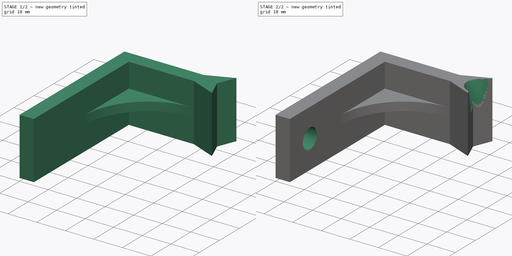
[diagram: build sequence overview — one tinted view per stage of 2, left to right]
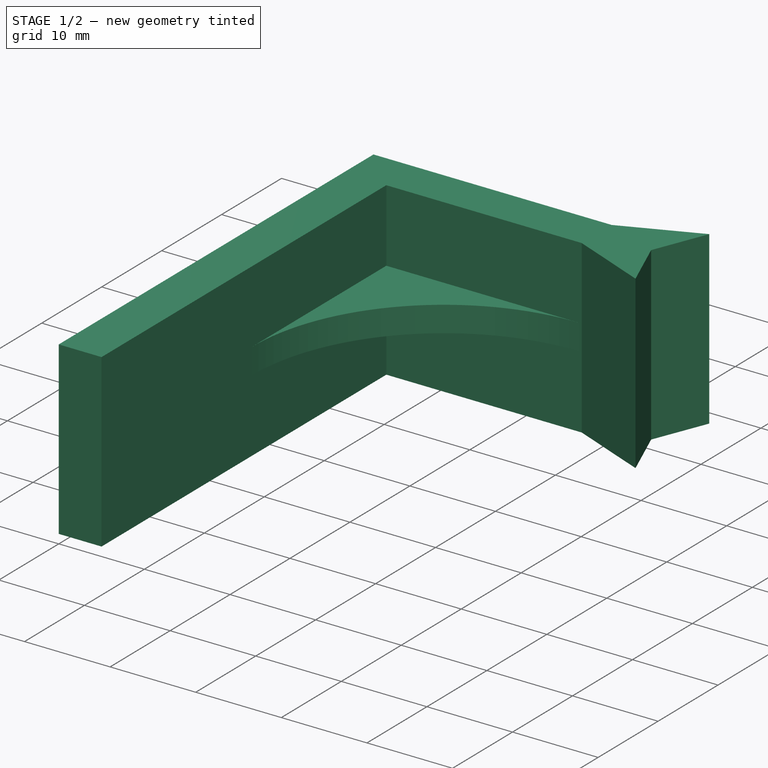
[diagram: stage 1 of 2 — iso view after this stage's code; geometry added in this stage tinted green]
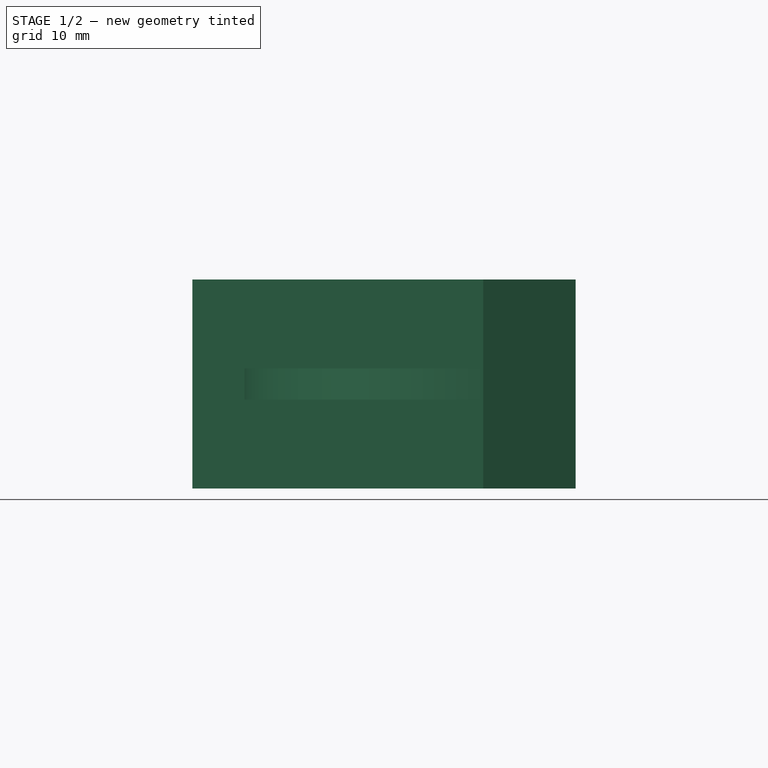
[diagram: stage 1 of 2 — front view after this stage's code; geometry added in this stage tinted green]
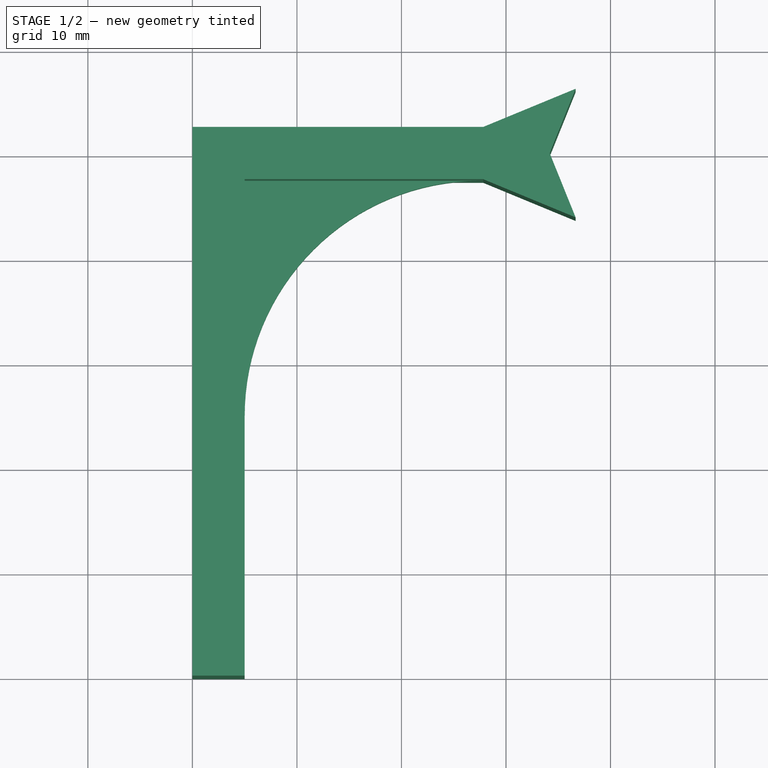
[diagram: stage 1 of 2 — top view after this stage's code; geometry added in this stage tinted green]
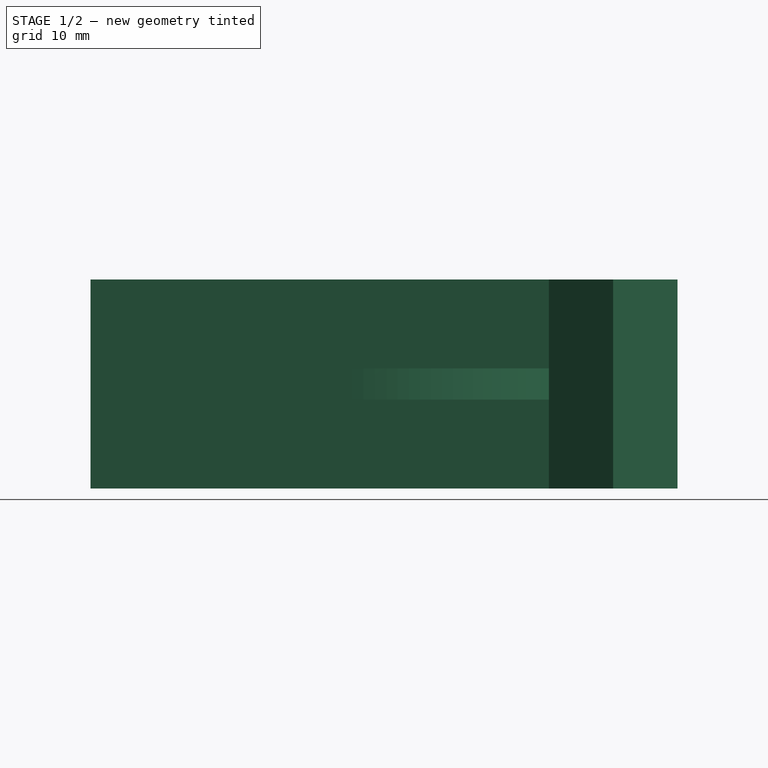
[diagram: stage 1 of 2 — right view after this stage's code; geometry added in this stage tinted green]
FCSTD DOCUMENT  (FreeCAD 0.18R16131 (Git))
Label: support filament
License: All rights reserved
LicenseURL: http://en.wikipedia.org/wiki/All_rights_reserved
objects: Sketcher::SketchObject×7, PartDesign::Pad×2, PartDesign::FeatureBase×1, PartDesign::Pocket×1, Part::Sweep×1, Part::Loft×1, PartDesign::SubtractivePipe×1, PartDesign::Body×1
note: 19 computed .brp shape members not serialized (recipe doc carries the construction recipe); baked Part::Feature solids carry a one-line shape summary decoded from their .brp

FEATURE [Sketcher::SketchObject] Sketch  label="goutiere base"
  MapMode = 5
  Support = -> [XY_Plane]
  sketch-geometry (4):
    g0: ArcOfCircle CenterX=0 CenterY=0 CenterZ=0 NormalX=0 NormalY=0 NormalZ=1 AngleXU=0 Radius=5 StartAngle=1.5708 EndAngle=4.71239
    g1: ArcOfCircle CenterX=0 CenterY=0 CenterZ=0 NormalX=0 NormalY=0 NormalZ=1 AngleXU=0 Radius=7 StartAngle=1.5708 EndAngle=4.71239
    g2: LineSegment StartX=4e-16 StartY=7 StartZ=0 EndX=3e-16 EndY=5 EndZ=0
    g3: LineSegment StartX=-9e-16 StartY=-5 StartZ=0 EndX=-1.3e-15 EndY=-7 EndZ=0
  constraints (12):
    c: Coincident(g0,g-1)
    c: Diameter(g0) = 10
    c: Diameter(g1) = 14
    c: Coincident(g1,g0)
    c: Coincident(g2,g1)
    c: Coincident(g2,g0)
    c: Coincident(g3,g0)
    c: PointOnObject(g3,g-2)
    c: Coincident(g1,g3)
    c: PointOnObject(g0,g-2)
    c: PointOnObject(g1,g-2)
    c: PointOnObject(g0,g-2)
FEATURE [Sketcher::SketchObject] Sketch004  label="bras 90"
  ExternalGeometry = -> [Sketch]
  MapMode = 5
  Support = -> [XY_Plane]
  sketch-geometry (14):
    g0: LineSegment StartX=-40 StartY=-50 StartZ=0 EndX=-35 EndY=-50 EndZ=0
    g1: LineSegment StartX=-35 StartY=-50 StartZ=0 EndX=-35 EndY=-2.5 EndZ=0
    g2: LineSegment StartX=-35 StartY=-2.5 StartZ=0 EndX=-12.1778 EndY=-2.5 EndZ=0
    g3: LineSegment StartX=-3.33923 StartY=-6.1522 StartZ=0 EndX=-5.82012 EndY=0 EndZ=0
    g4: LineSegment StartX=-12.1778 StartY=2.5 StartZ=0 EndX=-40 EndY=2.5 EndZ=0
    g5: LineSegment StartX=-40 StartY=2.5 StartZ=0 EndX=-40 EndY=-50 EndZ=0
    g6: GeomPoint X=-12.1778 Y=-2.5 Z=0
    g7: LineSegment [constr] StartX=-12.1778 StartY=18.2964 StartZ=0 EndX=-12.1778 EndY=-27.7085 EndZ=0
    g8: GeomPoint X=-12.1778 Y=2.5 Z=0
    g9: LineSegment StartX=-3.33923 StartY=-6.1522 StartZ=0 EndX=-12.1778 EndY=-2.5 EndZ=0
    g10: LineSegment StartX=-3.33923 StartY=6.1522 StartZ=0 EndX=-12.1778 EndY=2.5 EndZ=0
    g11: LineSegment [constr] StartX=-3.33923 StartY=16.1376 StartZ=0 EndX=-3.33923 EndY=-21.8091 EndZ=0
    g12: LineSegment StartX=-3.33923 StartY=6.1522 StartZ=0 EndX=-5.82012 EndY=0 EndZ=0
    g13: LineSegment [constr] StartX=-5.82012 StartY=11.5217 StartZ=0 EndX=-5.82012 EndY=-16.3891 EndZ=0
  constraints (34):
    c: Horizontal(g0)
    c: Coincident(g0,g1)
    c: Vertical(g1)
    c: Coincident(g1,g2)
    c: Horizontal(g2)
    c: Horizontal(g4)
    c: Coincident(g4,g5)
    c: Vertical(g5)
    c: Coincident(g5,g0)
    c: DistanceY(g1,g4) = 5
    c: PointOnObject(g6,g2)
    c: Vertical(g7)
    c: PointOnObject(g6,g7)
    c: PointOnObject(g8,g4)
    c: PointOnObject(g8,g7)
    c: DistanceY(g0,g-1) = 50
    c: DistanceX(g4,g-1) = 40
    c: DistanceX(g0,g0) = 5
    c: DistanceY(g1,g-1) = 2.5
    c: PointOnObject(g4,g7)
    c: PointOnObject(g2,g7)
    c: Coincident(g9,g3)
    c: Coincident(g9,g2)
    c: Coincident(g10,g4)
    c: Vertical(g11)
    c: PointOnObject(g3,g11)
    c: PointOnObject(g10,g11)
    c: PointOnObject(g3,g-1)
    c: PointOnObject(g10,g-3)
    c: PointOnObject(g3,g-3)
    c: Coincident(g12,g3)
    c: Vertical(g13)
    c: PointOnObject(g3,g13)
    c: Coincident(g12,g10)
FEATURE [Sketcher::SketchObject] Sketch002  label="bras penche"
  ExternalGeometry = -> [Sketch004]
  MapMode = 5
  Support = -> [XY_Plane]
  sketch-geometry (4):
    g0: LineSegment StartX=-12.1778 StartY=-2.5 StartZ=0 EndX=-18.1419 EndY=-2.5 EndZ=0
    g1: LineSegment StartX=-35 StartY=-30 StartZ=0 EndX=-35 EndY=-18.7334 EndZ=0
    g2: LineSegment StartX=-18.7666 StartY=-2.5 StartZ=0 EndX=-12.1778 EndY=-2.5 EndZ=0
    g3: ArcOfCircle CenterX=-18.7666 CenterY=-18.7334 CenterZ=0 NormalX=0 NormalY=0 NormalZ=1 AngleXU=0 Radius=16.2334 StartAngle=1.5708 EndAngle=3.14159
  constraints (9):
    c: PointOnObject(g0,g-3)
    c: Vertical(g1)
    c: Horizontal(g2)
    c: Coincident(g-3,g2)
    c: Coincident(g0,g2)
    c: DistanceY(g-4,g1) = 20
    c: PointOnObject(g1,g-4)
    c: Tangent(g1,g3) = 1.5708
    c: Tangent(g2,g3) = 1.5708
FEATURE [Sketcher::SketchObject] Sketch006  label="trou"
  AttachmentOffset = pos=(-50,0,0) rot=(0,0,1;0rad)
  ExternalGeometry = -> [Sketch004]
  MapMode = 5
  Placement = pos=(-1.11e-14,-50,1.11e-14) rot=(0.57735,0.57735,0.57735;2.0944rad)
  Support = -> [YZ_Plane]
  sketch-geometry (1):
    g0: Circle CenterX=10 CenterY=-4.7e-15 CenterZ=0 NormalX=0 NormalY=0 NormalZ=1 AngleXU=0 Radius=3.5
  constraints (2):
    c: Diameter(g0) = 7
    c: DistanceX(g-1,g0) = 10
FEATURE [PartDesign::FeatureBase] BaseFeature
FEATURE [PartDesign::Pad] Pad  label="Pad bras penche"
  BaseFeature = -> BaseFeature
  Length = 3
  Length2 = 100
  Midplane = true
  Profile = -> Sketch002
  Type = 0
FEATURE [PartDesign::Pad] Pad002  label="pad bras 90"
  BaseFeature = -> Pad
  Length = 20
  Length2 = 100
  Midplane = true
  Profile = -> Sketch004
  Type = 0
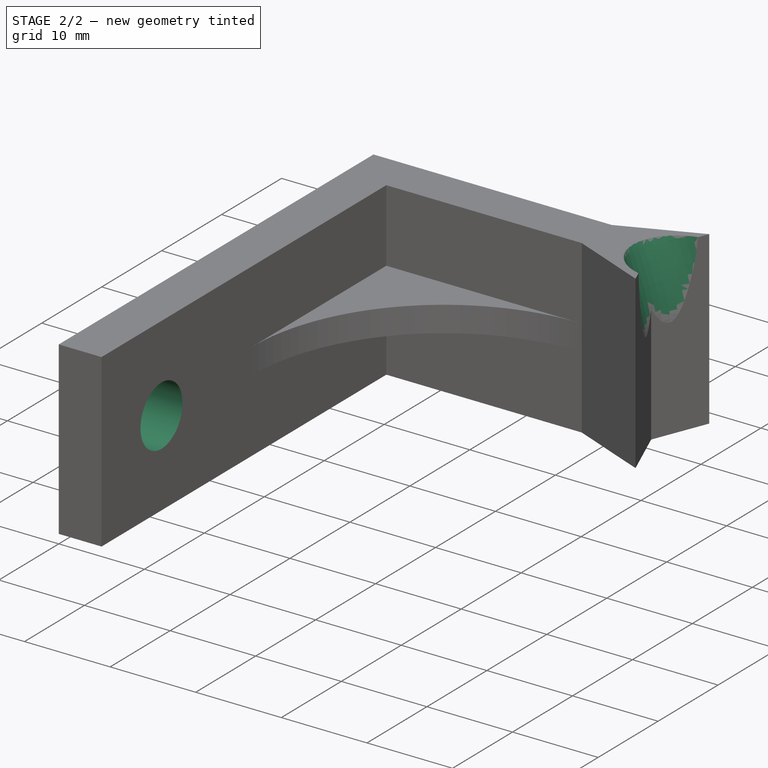
[diagram: stage 2 of 2 — iso view after this stage's code; geometry added in this stage tinted green]
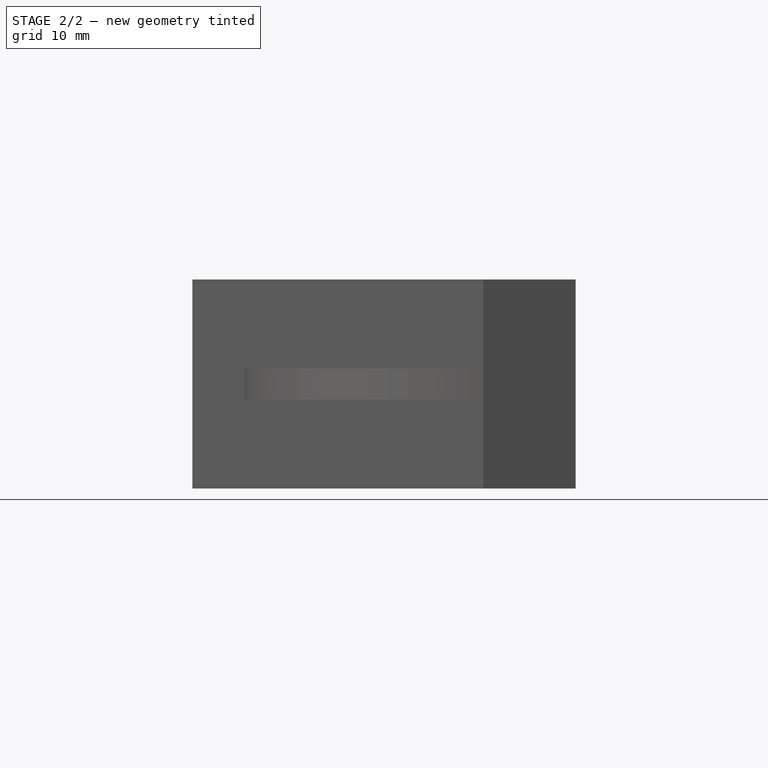
[diagram: stage 2 of 2 — front view after this stage's code; geometry added in this stage tinted green]
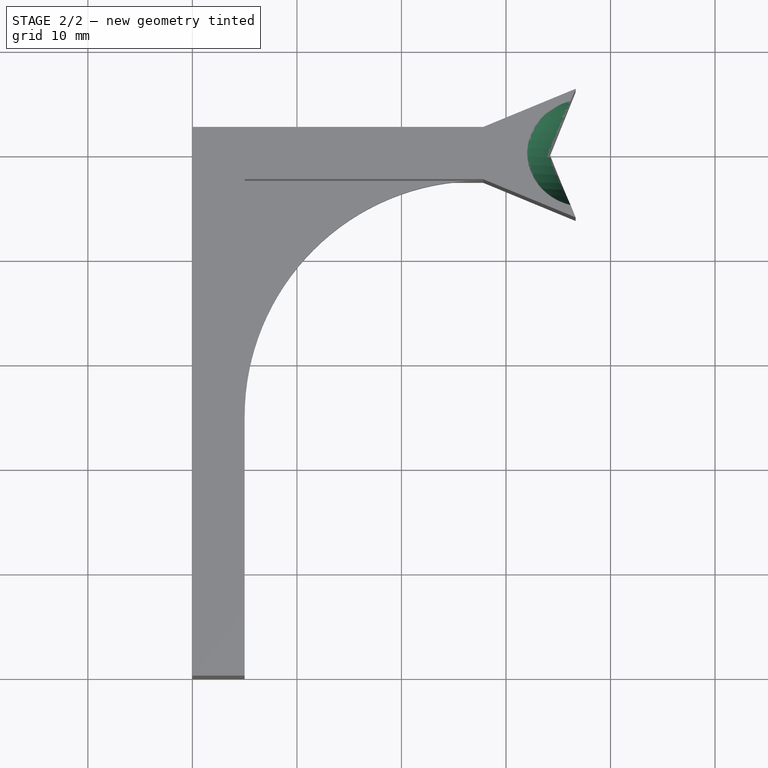
[diagram: stage 2 of 2 — top view after this stage's code; geometry added in this stage tinted green]
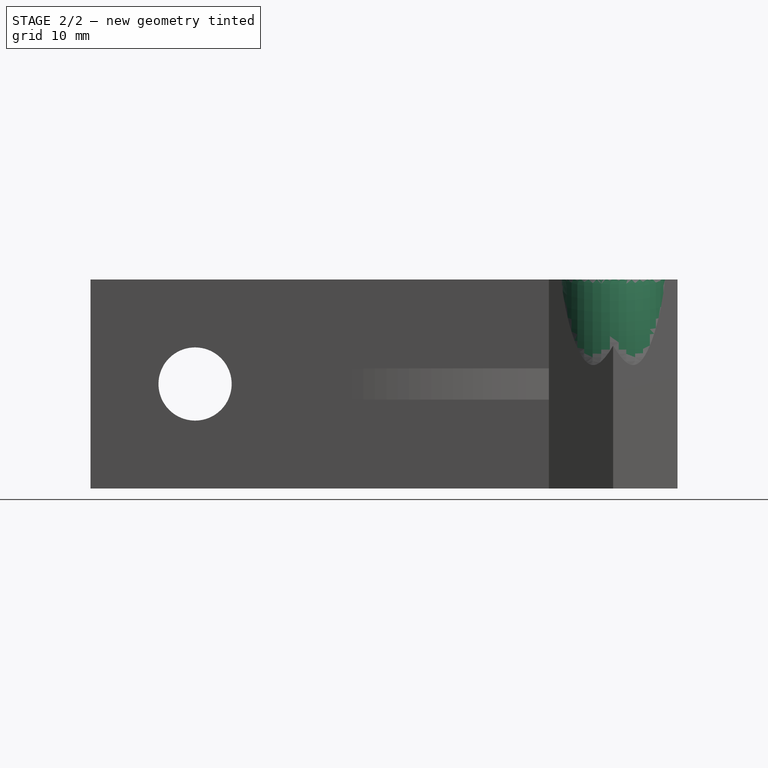
[diagram: stage 2 of 2 — right view after this stage's code; geometry added in this stage tinted green]
FEATURE [Sketcher::SketchObject] Sketch005  label="courbure2"
  ExternalGeometry = -> [Pad002,Sketch004]
  MapMode = 5
  Placement = pos=(0,0,0) rot=(1,0,0;1.5708rad)
  Support = -> [XZ_Plane]
  sketch-geometry (3):
    g0: LineSegment [constr] StartX=12.0219 StartY=28.0625 StartZ=0 EndX=18.2559 EndY=30.8838 EndZ=0
    g1: ArcOfCircle CenterX=-41.7357 CenterY=-4.98241 CenterZ=0 NormalX=0 NormalY=0 NormalZ=1 AngleXU=0 Radius=51.4758 StartAngle=0.096943 EndAngle=1.44418
    g2: LineSegment [constr] StartX=-35.2352 StartY=50.6996 StartZ=0 EndX=-35.2352 EndY=-32.7665 EndZ=0
  constraints (3):
    c: Vertical(g2)
    c: PointOnObject(g1,g2)
    c: PointOnObject(g1,g-1)
FEATURE [PartDesign::Pocket] Pocket
  BaseFeature = -> Pad002
  Length = 5
  Length2 = 100
  Profile = -> Sketch006
  Type = 1
FEATURE [Part::Sweep] Sweep  label="guide"
  Frenet = false
  Sections = -> [Sketch]
  Solid = false
  Spine = -> Sketch005 [Edge1]
  Transition = 1
FEATURE [Sketcher::SketchObject] Sketch007  label="goutiere evasee"
  AttachmentOffset = pos=(22,0,-15) rot=(0,0,1;0rad)
  MapMode = 5
  Placement = pos=(22,0,-15) rot=(0,0,1;0rad)
  Support = -> [XY_Plane]
  sketch-geometry (4):
    g0: ArcOfCircle CenterX=0 CenterY=0 CenterZ=0 NormalX=0 NormalY=0 NormalZ=1 AngleXU=0 Radius=25 StartAngle=1.5708 EndAngle=4.71239
    g1: ArcOfCircle CenterX=0 CenterY=0 CenterZ=0 NormalX=0 NormalY=0 NormalZ=1 AngleXU=0 Radius=28 StartAngle=1.5708 EndAngle=4.71395
    g2: LineSegment StartX=1.5e-15 StartY=28 StartZ=0 EndX=1.5e-15 EndY=25 EndZ=0
    g3: LineSegment StartX=-4.6e-15 StartY=-25 StartZ=0 EndX=0.043831 EndY=-28 EndZ=0
  constraints (11):
    c: Coincident(g0,g-1)
    c: PointOnObject(g0,g-2)
    c: Diameter(g0) = 50
    c: Coincident(g1,g0)
    c: PointOnObject(g1,g-2)
    c: Coincident(g2,g1)
    c: Coincident(g2,g0)
    c: Vertical(g2)
    c: Coincident(g3,g0)
    c: Coincident(g3,g1)
    c: DistanceY(g2,g2) = 3
FEATURE [Part::Loft] Loft  label="guide evase"
  Closed = false
  MaxDegree = 5
  Ruled = false
  Sections = -> [Sketch,Sketch007]
  Solid = false
FEATURE [Sketcher::SketchObject] Sketch008  label="cleanup"
  ExternalGeometry = -> [Sketch]
  MapMode = 5
  Support = -> [XY_Plane]
  sketch-geometry (1):
    g0: Circle CenterX=0 CenterY=0 CenterZ=0 NormalX=0 NormalY=0 NormalZ=1 AngleXU=0 Radius=5.12866
  constraints (1):
    c: Coincident(g0,g-1)
FEATURE [PartDesign::SubtractivePipe] SubtractivePipe
  AuxilleryCurvelinear = true
  AuxillerySpineTangent = false
  BaseFeature = -> Pocket
  Binormal = (0,0,0)
  Mode = 0
  Profile = -> Sketch008
  Spine = -> Sketch005
  SpineTangent = false
  Transformation = 0
  Transition = 0
FEATURE [PartDesign::Body] Body
  Group = -> [BaseFeature,Sketch,Sketch002,Pad,Sketch004,Pad002,Sketch005,Sketch006,Pocket,Sketch007,Sketch008,SubtractivePipe]
  Origin = -> Origin
  Tip = -> SubtractivePipe
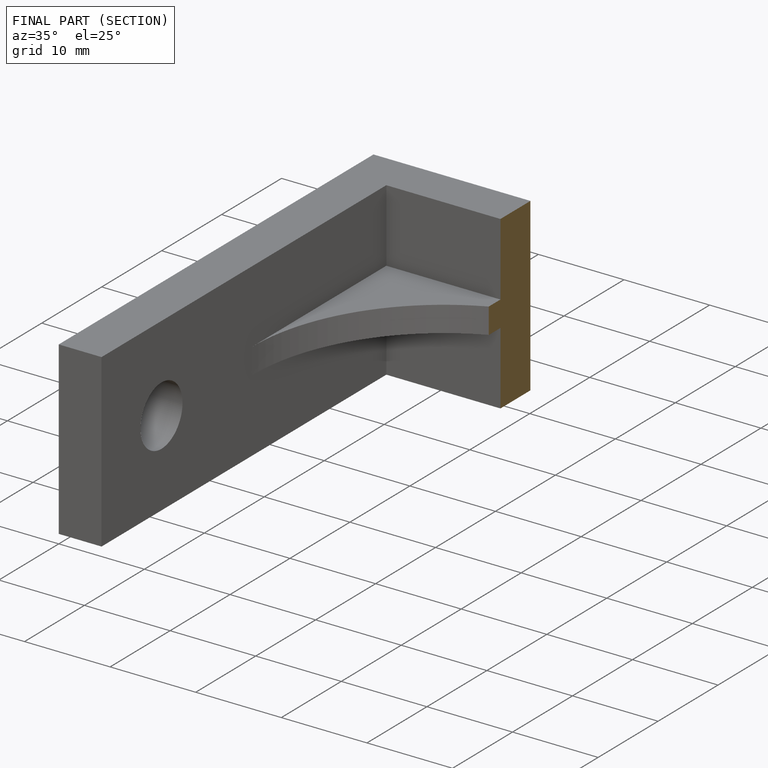
[diagram: finished part — half-section view (interior)]
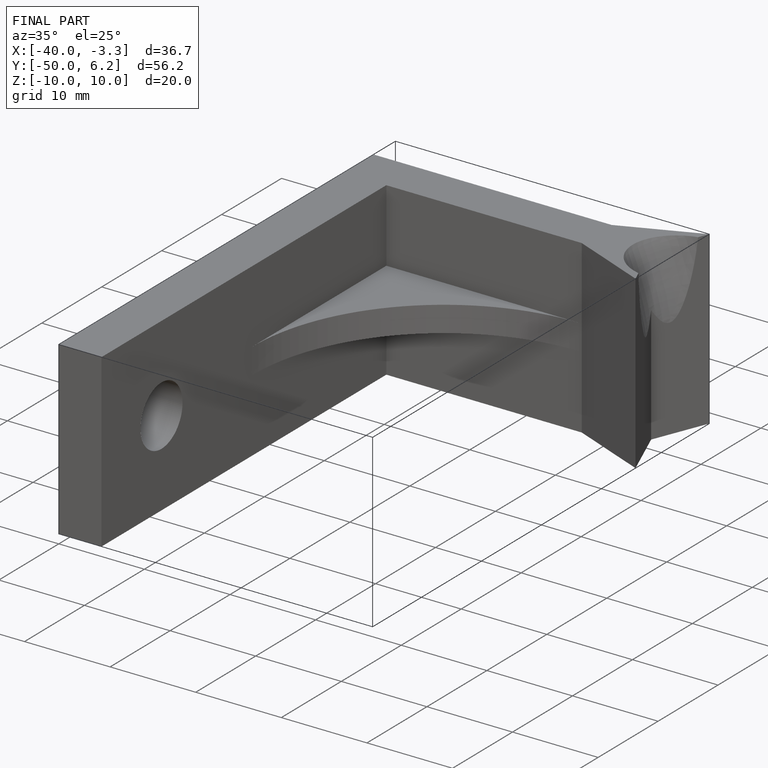
[diagram: finished part — iso view with bounding-box wireframe]
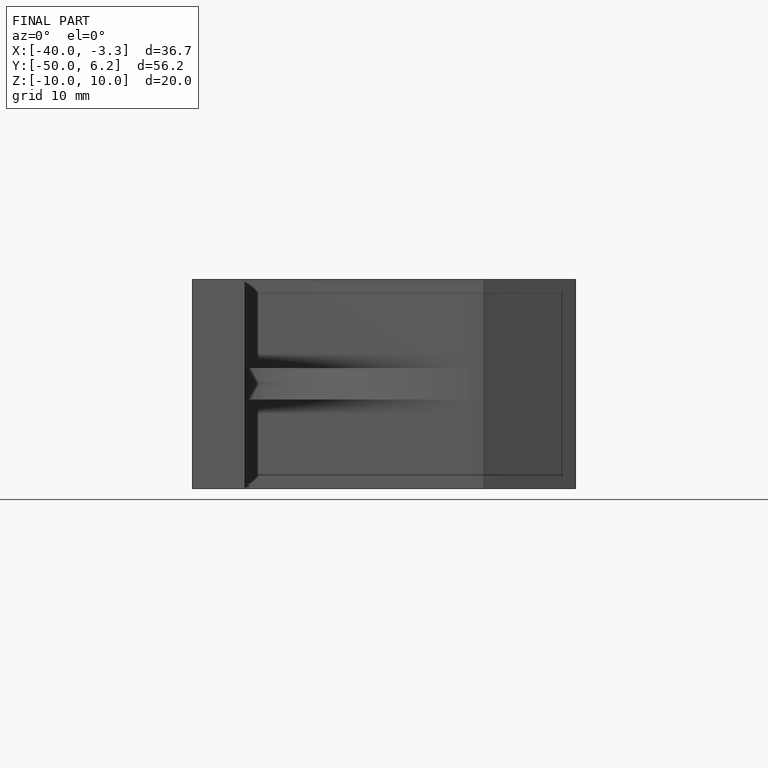
[diagram: finished part — front view with bounding-box wireframe]
